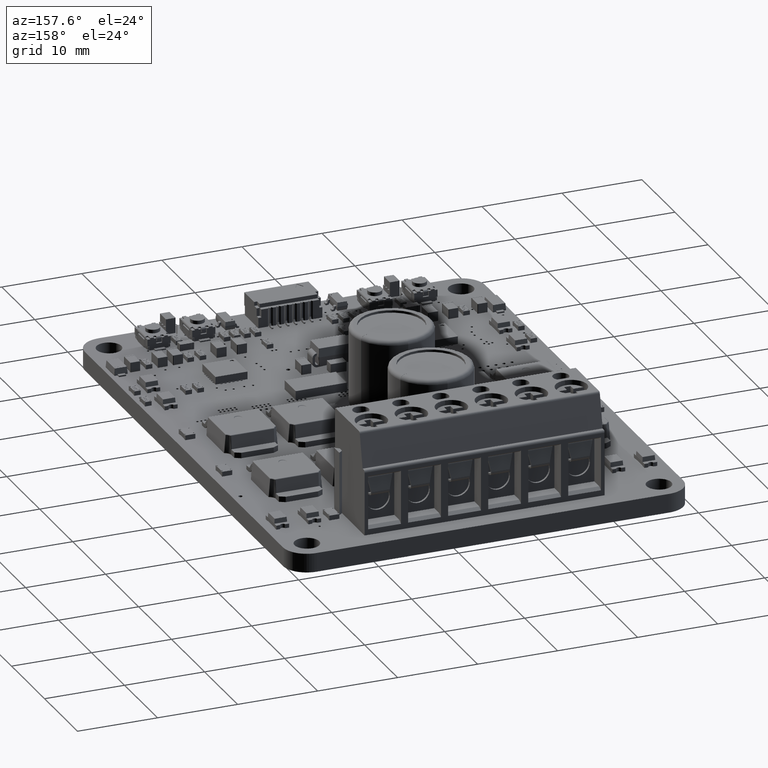
[diagram: clean part render]
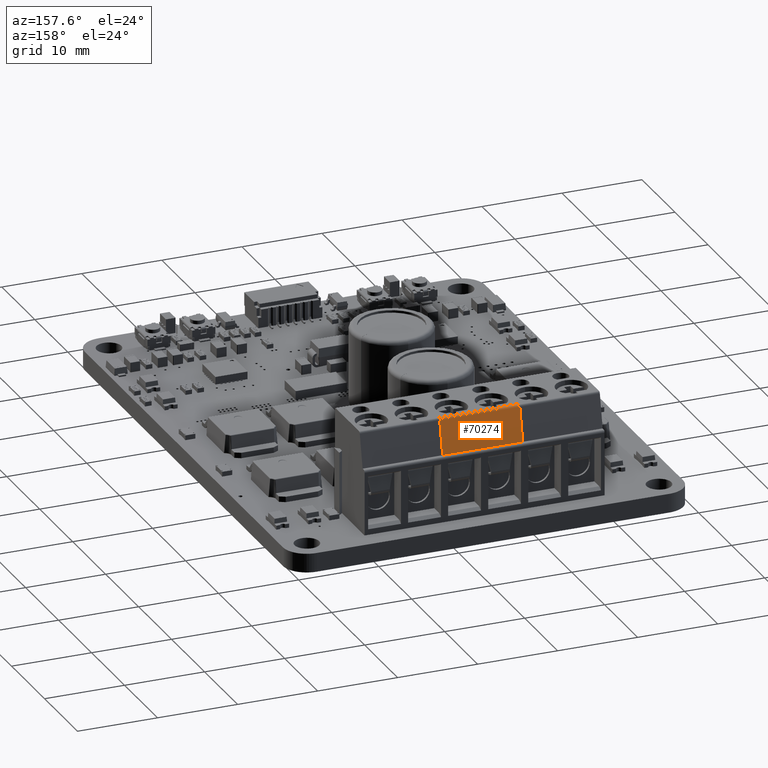
[diagram: same view with one face highlighted and labeled with its STEP entity id]
A machine part, auxiliary view. The second image highlights one B-rep face of the part: STEP entity #70274.
In plain terms, the highlighted planar face has unit normal (0, 0.9788, 0.2049).
Its self-contained STEP definition (entity closure, byte-faithful):
#70149 = VERTEX_POINT('',#70150);
#70150 = CARTESIAN_POINT('',(8.4,8.2,22.5));
#70156 = EDGE_CURVE('',#70157,#70149,#70159,.T.);
#70157 = VERTEX_POINT('',#70158);
#70158 = CARTESIAN_POINT('',(7.549927197299,12.261458946237,22.5));
#70159 = LINE('',#70160,#70161);
#70160 = CARTESIAN_POINT('',(8.42518134715,8.079689119171,22.5));
#70161 = VECTOR('',#70162,1.);
#70162 = DIRECTION('',(0.204863154123,-0.978790625253,0.));
#70246 = EDGE_CURVE('',#70247,#70157,#70249,.T.);
#70247 = VERTEX_POINT('',#70248);
#70248 = CARTESIAN_POINT('',(7.549927197299,12.261458946237,12.5));
#70249 = LINE('',#70250,#70251);
#70250 = CARTESIAN_POINT('',(7.549927197299,12.261458946237,22.5));
#70251 = VECTOR('',#70252,1.);
#70252 = DIRECTION('',(0.,0.,1.));
#70274 = ADVANCED_FACE('',(#70275),#70293,.T.);
#70275 = FACE_BOUND('',#70276,.T.);
#70276 = EDGE_LOOP('',(#70277,#70285,#70291,#70292));
#70277 = ORIENTED_EDGE('',*,*,#70278,.T.);
#70278 = EDGE_CURVE('',#70149,#70279,#70281,.T.);
#70279 = VERTEX_POINT('',#70280);
#70280 = CARTESIAN_POINT('',(8.4,8.2,12.5));
#70281 = LINE('',#70282,#70283);
#70282 = CARTESIAN_POINT('',(8.4,8.2,22.5));
#70283 = VECTOR('',#70284,1.);
#70284 = DIRECTION('',(0.,0.,-1.));
#70285 = ORIENTED_EDGE('',*,*,#70286,.F.);
#70286 = EDGE_CURVE('',#70247,#70279,#70287,.T.);
#70287 = LINE('',#70288,#70289);
#70288 = CARTESIAN_POINT('',(8.42518134715,8.079689119171,12.5));
#70289 = VECTOR('',#70290,1.);
#70290 = DIRECTION('',(0.204863154123,-0.978790625253,0.));
#70291 = ORIENTED_EDGE('',*,*,#70246,.T.);
#70292 = ORIENTED_EDGE('',*,*,#70156,.T.);
#70293 = PLANE('',#70294);
#70294 = AXIS2_PLACEMENT_3D('',#70295,#70296,#70297);
#70295 = CARTESIAN_POINT('',(7.5,12.5,22.5));
#70296 = DIRECTION('',(0.978790625253,0.204863154123,0.));
#70297 = DIRECTION('',(-0.204863154123,0.978790625253,0.));